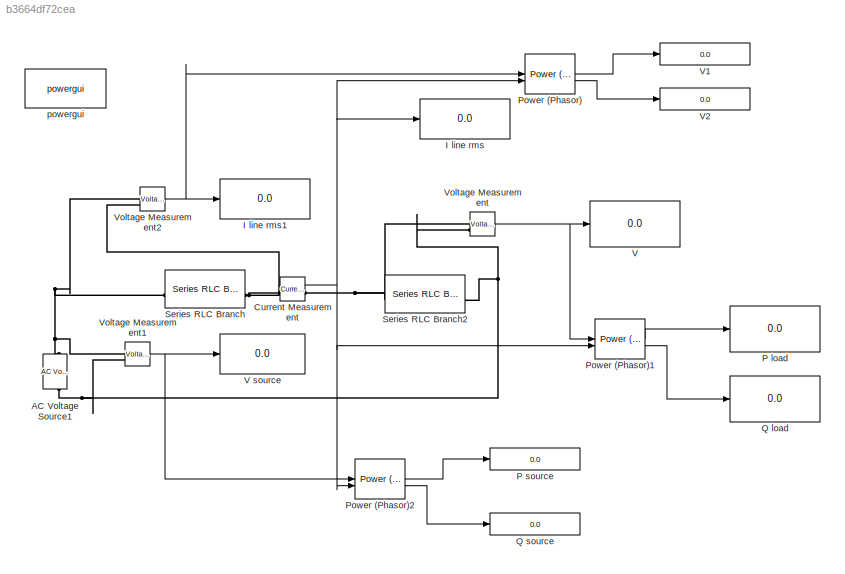
MODEL slx_b3664df72cea
KIND model
CONFIG AbsTol = auto
CONFIG EnableMultiTasking = off
CONFIG FixedStep = auto
CONFIG MaxStep = auto
CONFIG MinStep = auto
CONFIG RelTol = 1e-3
CONFIG SampleTimeConstraint = Unconstrained
CONFIG SolverName = VariableStepAuto
CONFIG StartTime = 0.0
CONFIG StopTime = 0.02
BLOCK [Reference] AC Voltage Source1  REF=spsACVoltageSourceLib/AC Voltage Source
  LibrarySourceBlock = sps_lib/Sources/AC Voltage Source
  SourceBlock = spsACVoltageSourceLib/AC Voltage Source
  SourceType = AC Voltage Source
BLOCK [Reference] Current Measurement  REF=spsCurrentMeasurementLib/Current Measurement
  LibrarySourceBlock = sps_lib/Sensors and Measurements/Current Measurement
  SourceBlock = spsCurrentMeasurementLib/Current Measurement
  SourceType = Current Measurement
  UserDataPersistent = on
BLOCK [Display] I line rms
  Decimation = 1
BLOCK [Display] I line rms1
  Decimation = 1
BLOCK [Display] P load
  Decimation = 1
BLOCK [Display] P source
  Decimation = 1
BLOCK [Reference] Power (Phasor)  REF=spsPowerPhasorLib/Power
(Phasor)
  LibrarySourceBlock = sps_lib/Sensors and Measurements/Power\n(Phasor)
  SourceBlock = spsPowerPhasorLib/Power\n(Phasor)
  SourceType = Power (Phasor)
BLOCK [Reference] Power (Phasor)1  REF=spsPowerPhasorLib/Power
(Phasor)
  LibrarySourceBlock = sps_lib/Sensors and Measurements/Power\n(Phasor)
  SourceBlock = spsPowerPhasorLib/Power\n(Phasor)
  SourceType = Power (Phasor)
BLOCK [Reference] Power (Phasor)2  REF=spsPowerPhasorLib/Power
(Phasor)
  LibrarySourceBlock = sps_lib/Sensors and Measurements/Power\n(Phasor)
  SourceBlock = spsPowerPhasorLib/Power\n(Phasor)
  SourceType = Power (Phasor)
BLOCK [Display] Q load
  Decimation = 1
BLOCK [Display] Q source
  Decimation = 1
BLOCK [Reference] Series RLC Branch  REF=spsSeriesRLCBranchLib/Series RLC Branch
  LibrarySourceBlock = sps_lib/Passives/Series RLC Branch
  SourceBlock = spsSeriesRLCBranchLib/Series RLC Branch
  SourceType = Series RLC Branch
BLOCK [Reference] Series RLC Branch2  REF=spsSeriesRLCBranchLib/Series RLC Branch
  LibrarySourceBlock = sps_lib/Passives/Series RLC Branch
  SourceBlock = spsSeriesRLCBranchLib/Series RLC Branch
  SourceType = Series RLC Branch
BLOCK [Display] V
  Decimation = 1
BLOCK [Display] V source
  Decimation = 1
BLOCK [Display] V1
  Decimation = 1
BLOCK [Display] V2
  Decimation = 1
BLOCK [Reference] Voltage Measurement  REF=spsVoltageMeasurementLib/Voltage Measurement
  LibrarySourceBlock = sps_lib/Sensors and Measurements/Voltage Measurement
  SourceBlock = spsVoltageMeasurementLib/Voltage Measurement
  SourceType = Voltage Measurement
  UserDataPersistent = on
BLOCK [Reference] Voltage Measurement1  REF=spsVoltageMeasurementLib/Voltage Measurement
  LibrarySourceBlock = sps_lib/Sensors and Measurements/Voltage Measurement
  SourceBlock = spsVoltageMeasurementLib/Voltage Measurement
  SourceType = Voltage Measurement
  UserDataPersistent = on
BLOCK [Reference] Voltage Measurement2  REF=spsVoltageMeasurementLib/Voltage Measurement
  LibrarySourceBlock = sps_lib/Sensors and Measurements/Voltage Measurement
  SourceBlock = spsVoltageMeasurementLib/Voltage Measurement
  SourceType = Voltage Measurement
  UserDataPersistent = on
BLOCK [Reference] powergui  REF=sps_lib/powergui
  LibrarySourceBlock = sps_lib/powergui
  Priority = 1
  SourceBlock = sps_lib/powergui
  SourceType = PSB option menu block
NET Current Measurement:1 -> I line rms:1, Power (Phasor)1:2, Power (Phasor)2:2, Power (Phasor):2
LINE Power (Phasor)1:1 -> P load:1
LINE Power (Phasor)1:2 -> Q load:1
LINE Power (Phasor)2:1 -> P source:1
LINE Power (Phasor)2:2 -> Q source:1
LINE Power (Phasor):1 -> V1:1
LINE Power (Phasor):2 -> V2:1
NET Voltage Measurement1:1 -> Power (Phasor)2:1, V source:1
NET Voltage Measurement2:1 -> I line rms1:1, Power (Phasor):1
NET Voltage Measurement:1 -> Power (Phasor)1:1, V:1
PNET net1: AC Voltage Source1:LConn1 -- Series RLC Branch2:RConn1 -- Voltage Measurement1:LConn2 -- Voltage Measurement:LConn2
PNET net2: AC Voltage Source1:RConn1 -- Series RLC Branch:LConn1 -- Voltage Measurement1:LConn1 -- Voltage Measurement2:LConn1
PNET net3: Current Measurement:LConn1 -- Series RLC Branch:RConn1 -- Voltage Measurement2:LConn2
PNET net4: Current Measurement:RConn1 -- Series RLC Branch2:LConn1 -- Voltage Measurement:LConn1
note: NET lines group one-source signal fan-out (src -> all destinations, sorted); 1:1 wires keep LINE; PNET lines group multi-terminal physical nets as a canonical sorted terminal list (undirected conserving connections); 2-terminal nets keep the pairwise PLINE form
